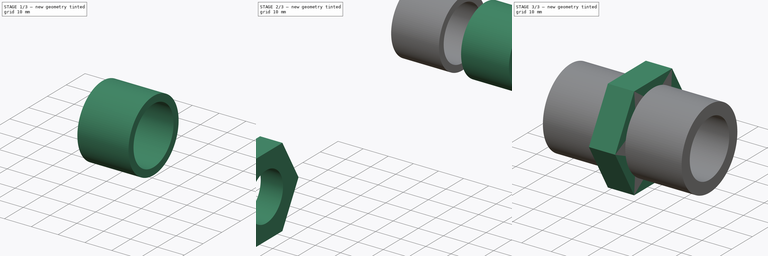
[diagram: build sequence overview — one tinted view per stage of 3, left to right]
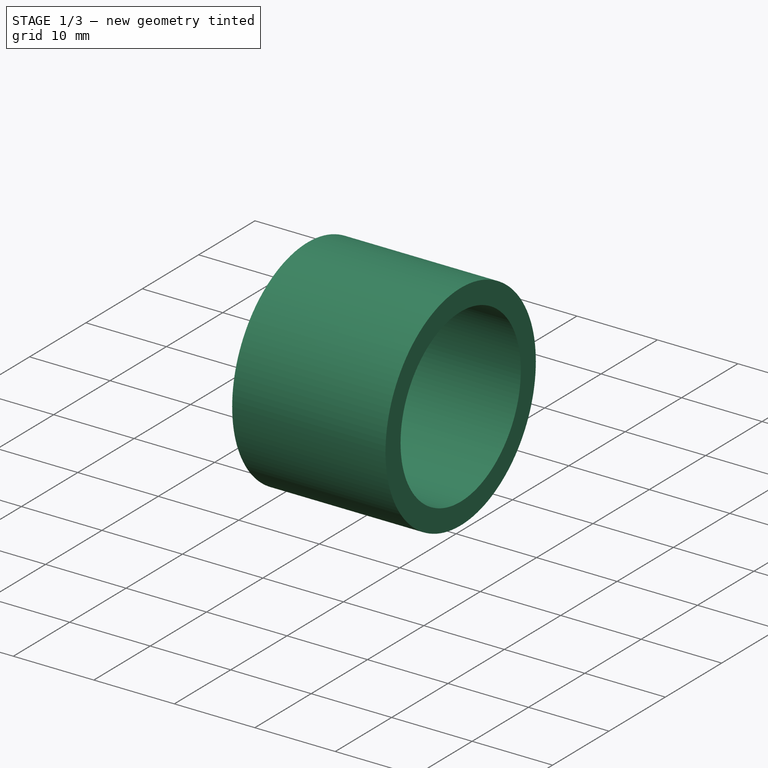
[diagram: stage 1 of 3 — iso view after this stage's code; geometry added in this stage tinted green]
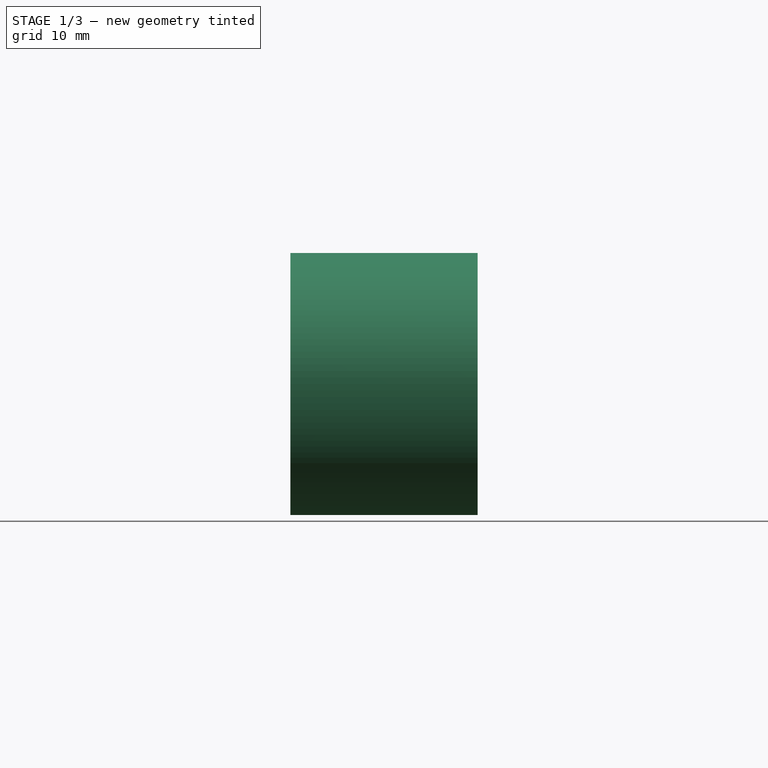
[diagram: stage 1 of 3 — front view after this stage's code; geometry added in this stage tinted green]
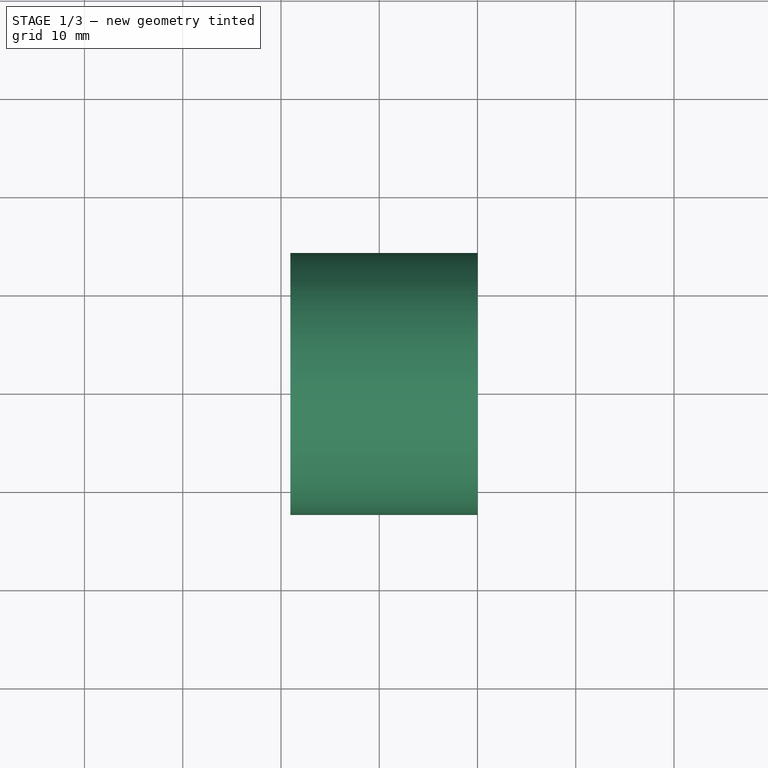
[diagram: stage 1 of 3 — top view after this stage's code; geometry added in this stage tinted green]
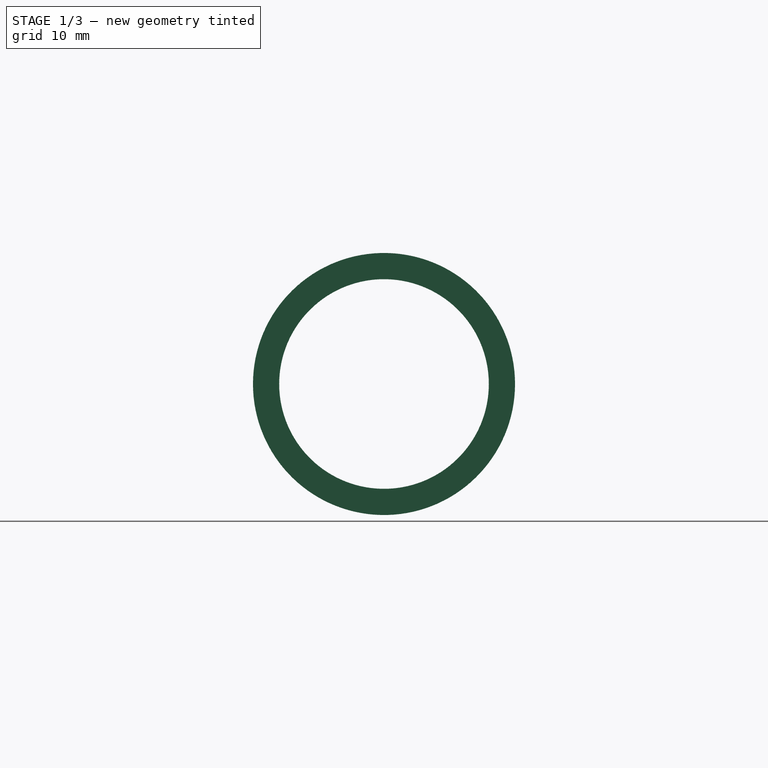
[diagram: stage 1 of 3 — right view after this stage's code; geometry added in this stage tinted green]
FCSTD DOCUMENT  (FreeCAD 0.16R6712 (Git))
Label: SAE_12 to 0.75in NPT adapter
License: All rights reserved
LicenseURL: http://en.wikipedia.org/wiki/All_rights_reserved
objects: Sketcher::SketchObject×3, PartDesign::Pad×3, Part::FeaturePython×3, App::FeaturePython×2, Part::Compound×1, Part::Feature×1
note: 14 computed .brp shape members not serialized (recipe doc carries the construction recipe); baked Part::Feature solids carry a one-line shape summary decoded from their .brp

FEATURE [Sketcher::SketchObject] Sketch  label="NPT 0.75in"
  Placement = pos=(0,0,0) rot=(0.57735,0.57735,0.57735;2.0944rad)
  sketch-geometry (2):
    g0: Circle CenterX=0 CenterY=0 CenterZ=0 NormalX=0 NormalY=0 NormalZ=1 Radius=10.668
    g1: Circle CenterX=0 CenterY=0 CenterZ=0 NormalX=0 NormalY=0 NormalZ=1 Radius=13.335
  constraints (4):
    c: Coincident(g0,g-1)
    c: Radius(g0) = 10.668
    c: Coincident(g1,g-1)
    c: Radius(g1) = 13.335
FEATURE [PartDesign::Pad] Pad  label="0.75in x0.75in NPT tube"
  Length = 19.05
  Length2 = 100
  Placement = pos=(0,0,0) rot=(0.57735,0.57735,0.57735;2.0944rad)
  Sketch = -> Sketch
  Type = 0
FEATURE [Part::FeaturePython] Clone002  label="Clone of 0.75in x0.75in NPT tube"  # Draft clone (typed FeaturePython)
  Objects = -> [Pad]
  Placement = pos=(60.96,50.8,50.8) rot=(0.57735,0.57735,0.57735;2.0944rad)
  Scale = (1,1,1)
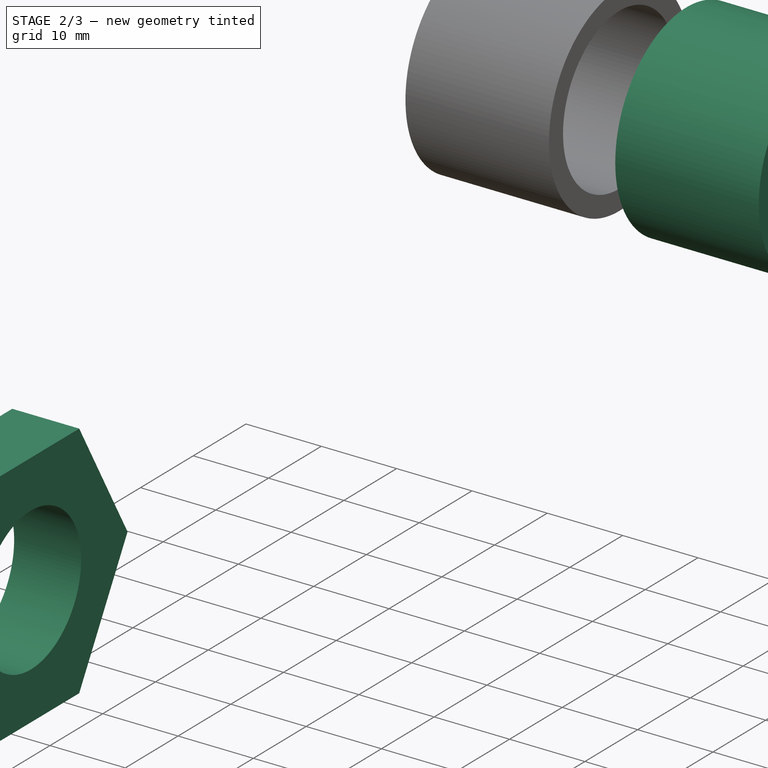
[diagram: stage 2 of 3 — iso view after this stage's code; geometry added in this stage tinted green]
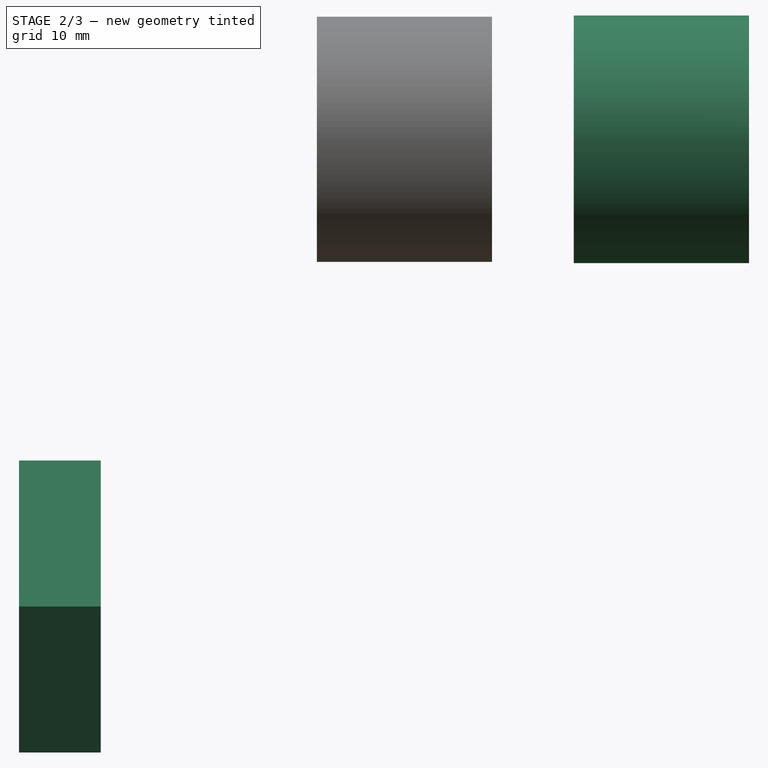
[diagram: stage 2 of 3 — front view after this stage's code; geometry added in this stage tinted green]
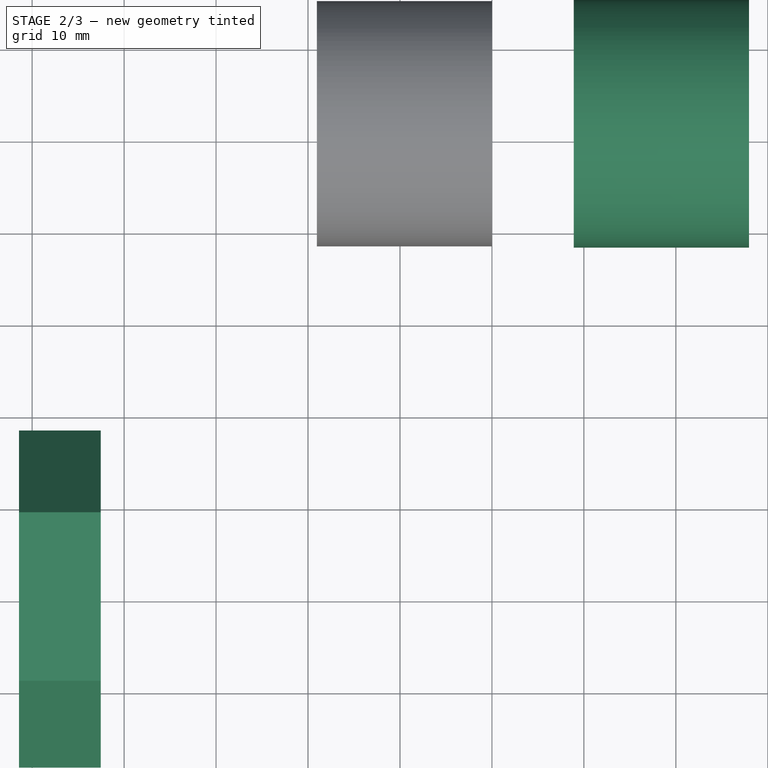
[diagram: stage 2 of 3 — top view after this stage's code; geometry added in this stage tinted green]
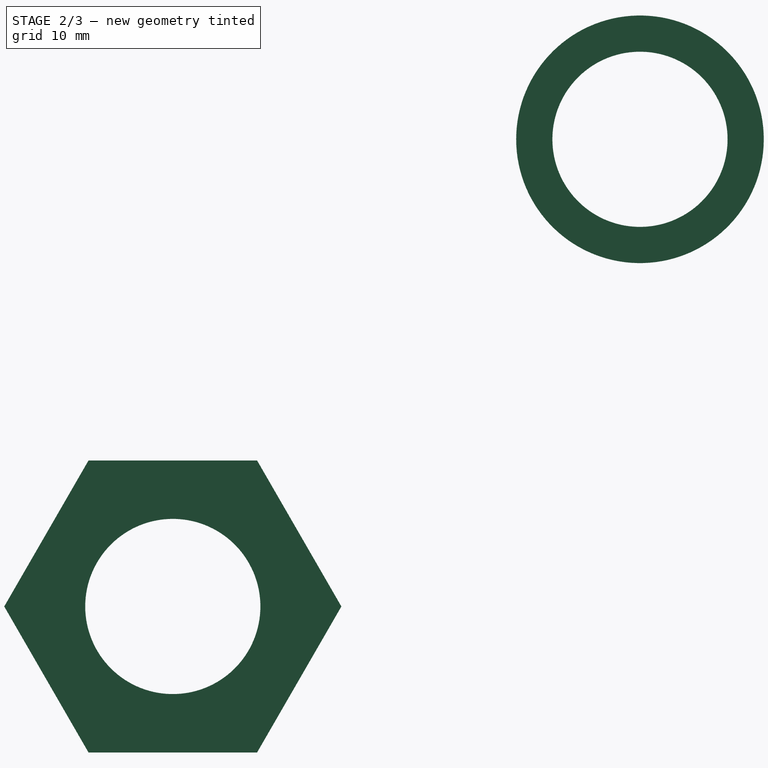
[diagram: stage 2 of 3 — right view after this stage's code; geometry added in this stage tinted green]
FEATURE [Sketcher::SketchObject] Sketch001  label="SAE -12 O-ring Boss 1-1/16in OD"
  Placement = pos=(38.1,0,0) rot=(0.57735,0.57735,0.57735;2.0944rad)
  sketch-geometry (2):
    g0: Circle CenterX=0 CenterY=0 CenterZ=0 NormalX=0 NormalY=0 NormalZ=1 Radius=13.462
    g1: Circle CenterX=0 CenterY=0 CenterZ=0 NormalX=0 NormalY=0 NormalZ=1 Radius=9.525
  constraints (4):
    c: Coincident(g0,g-1)
    c: Coincident(g1,g-1)
    c: Radius(g1) = 9.525  'inner tube'
    c: Radius(g0) = 13.462
FEATURE [PartDesign::Pad] Pad001  label="SAE -16 x 0.75in tube"
  Length = 19.05
  Length2 = 100
  Placement = pos=(38.1,0,0) rot=(0.57735,0.57735,0.57735;2.0944rad)
  Sketch = -> Sketch001
  Type = 0
FEATURE [Sketcher::SketchObject] Sketch002  label="Hex 1.25in with 0.75in bore"
  Placement = pos=(33.02,0,0) rot=(0.57735,0.57735,0.57735;2.0944rad)
  sketch-geometry (9):
    g0: LineSegment StartX=9.16544 StartY=-15.875 StartZ=0 EndX=18.3309 EndY=0 EndZ=0
    g1: LineSegment StartX=18.3309 StartY=0 StartZ=0 EndX=9.16544 EndY=15.875 EndZ=0
    g2: LineSegment StartX=9.16544 StartY=15.875 StartZ=0 EndX=-9.16544 EndY=15.875 EndZ=0
    g3: LineSegment StartX=-9.16544 StartY=15.875 StartZ=0 EndX=-18.3309 EndY=0 EndZ=0
    g4: LineSegment StartX=-18.3309 StartY=0 StartZ=0 EndX=-9.16544 EndY=-15.875 EndZ=0
    g5: LineSegment StartX=-9.16544 StartY=-15.875 StartZ=0 EndX=9.16544 EndY=-15.875 EndZ=0
    g6: Circle [constr] CenterX=0 CenterY=0 CenterZ=0 NormalX=0 NormalY=0 NormalZ=1 Radius=18.3309
    g7: LineSegment [constr] StartX=-9.16544 StartY=15.875 StartZ=0 EndX=-9.16544 EndY=-15.875 EndZ=0
    g8: Circle CenterX=0 CenterY=0 CenterZ=0 NormalX=0 NormalY=0 NormalZ=1 Radius=9.525
  constraints (20):
    c: Coincident(g0,g1)
    c: Coincident(g1,g2)
    c: Coincident(g2,g3)
    c: Coincident(g3,g4)
    c: Coincident(g4,g5)
    c: Coincident(g5,g0)
    c: Equal(g0, g1-g5) x5
    c: PointOnObject(g0,g6)
    c: PointOnObject(g1,g6)
    c: PointOnObject(g2,g6)
    c: PointOnObject(g3,g6)
    c: PointOnObject(g4,g6)
    c: PointOnObject(g5,g6)
    c: Coincident(g6,g-1)
    c: Coincident(g7,g2)
    c: Coincident(g7,g4)
    c: Vertical(g7)
    c: DistanceY(g7,g7) = 31.75
    c: Coincident(g8,g-1)
    c: Radius(g8) = 9.525
FEATURE [PartDesign::Pad] Pad002  label="Hex nut 1.5in x 0.35in"
  Length = 8.89
  Length2 = 100
  Midplane = true
  Placement = pos=(33.02,0,0) rot=(0.57735,0.57735,0.57735;2.0944rad)
  Reversed = true
  Sketch = -> Sketch002
  Type = 0
FEATURE [Part::FeaturePython] Clone001  label="Clone of SAE -12 x 0.75in tube"  # Draft clone (typed FeaturePython)
  Objects = -> [Pad001]
  Placement = pos=(88.9,50.8,50.8) rot=(0.57735,0.57735,0.57735;2.0944rad)
  Scale = (1,1,1)
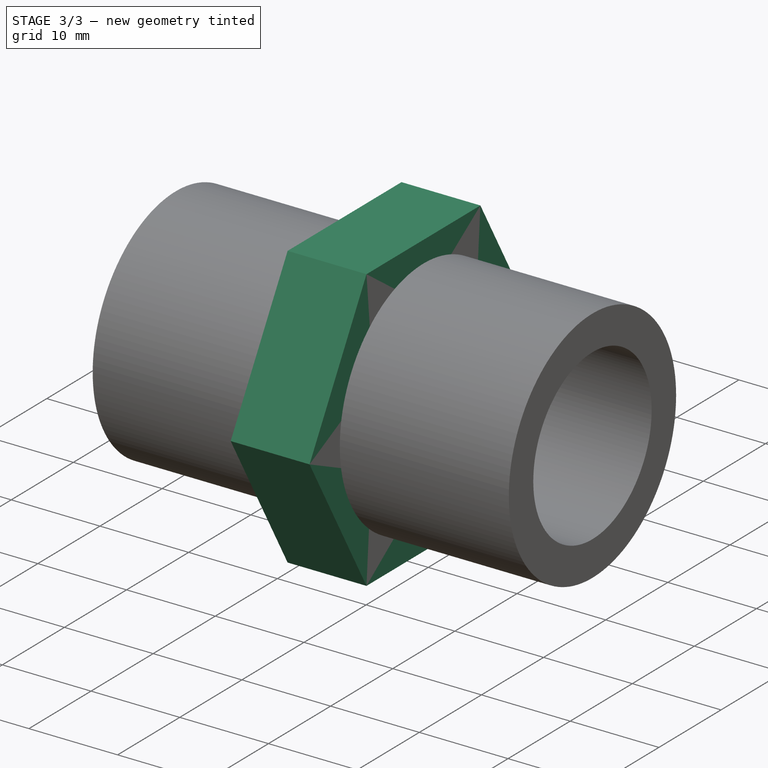
[diagram: stage 3 of 3 — iso view after this stage's code; geometry added in this stage tinted green]
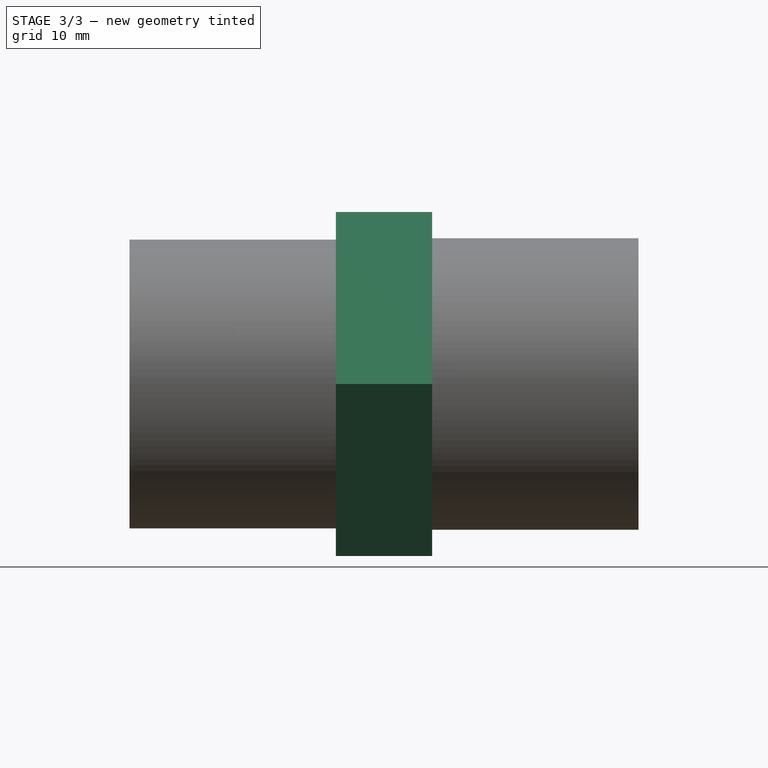
[diagram: stage 3 of 3 — front view after this stage's code; geometry added in this stage tinted green]
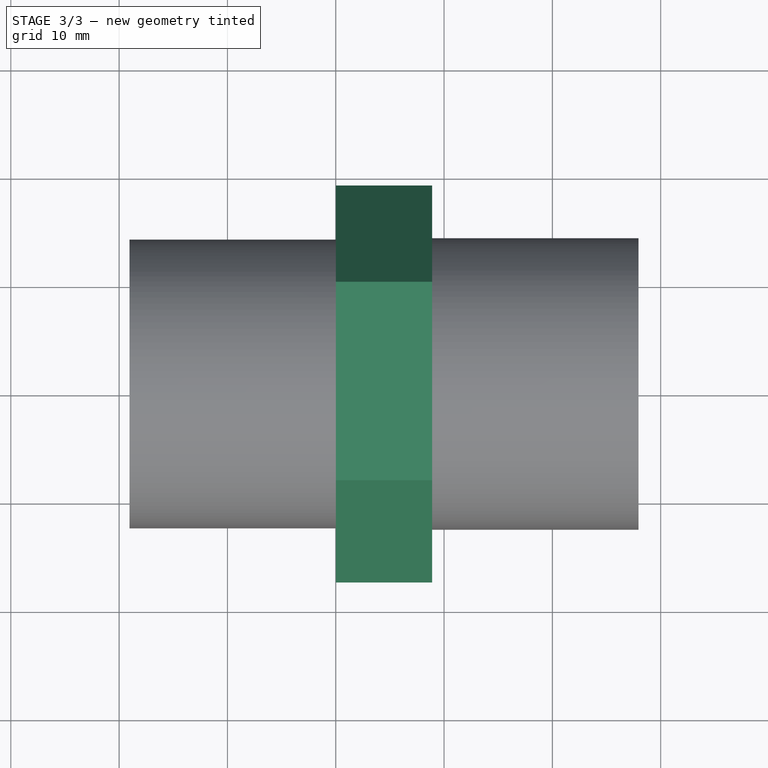
[diagram: stage 3 of 3 — top view after this stage's code; geometry added in this stage tinted green]
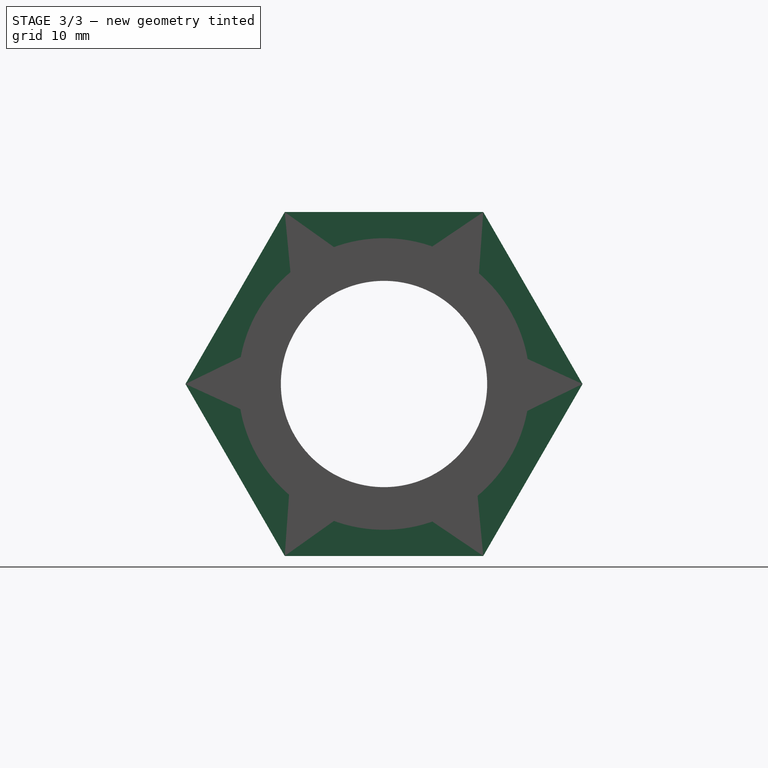
[diagram: stage 3 of 3 — right view after this stage's code; geometry added in this stage tinted green]
FEATURE [Part::FeaturePython] Clone  label="Clone of Hex nut 1.25in x 0.35in"  # Draft clone (typed FeaturePython)
  Objects = -> [Pad002]
  Placement = pos=(84.455,50.8,50.8) rot=(0.57735,0.57735,0.57735;2.0944rad)
  Scale = (1,1,1)
FEATURE [App::FeaturePython] circularEdgeConstraint01  # a2plus constraint (typed FeaturePython)
  Object1 = Clone
  Object2 = Clone001
  SubElement1 = Edge21
  SubElement2 = Edge5
  Type = circularEdge
  directionConstraint = 0
  lockRotation = false
  offset = 0
FEATURE [App::FeaturePython] circularEdgeConstraint02  # a2plus constraint (typed FeaturePython)
  Object1 = Clone
  Object2 = Clone002
  SubElement1 = Edge20
  SubElement2 = Edge6
  Type = circularEdge
  directionConstraint = 0
  lockRotation = false
  offset = 0
FEATURE [Part::Compound] Compound
  Links = -> [Clone,Clone002,Clone001]
FEATURE [Part::Feature] Compound001  label="SAE -12 to 3/4" adapter"
  shape: bbox 46.99 x 36.66 x 31.75 mm, 17 faces, 3 solids (baked)
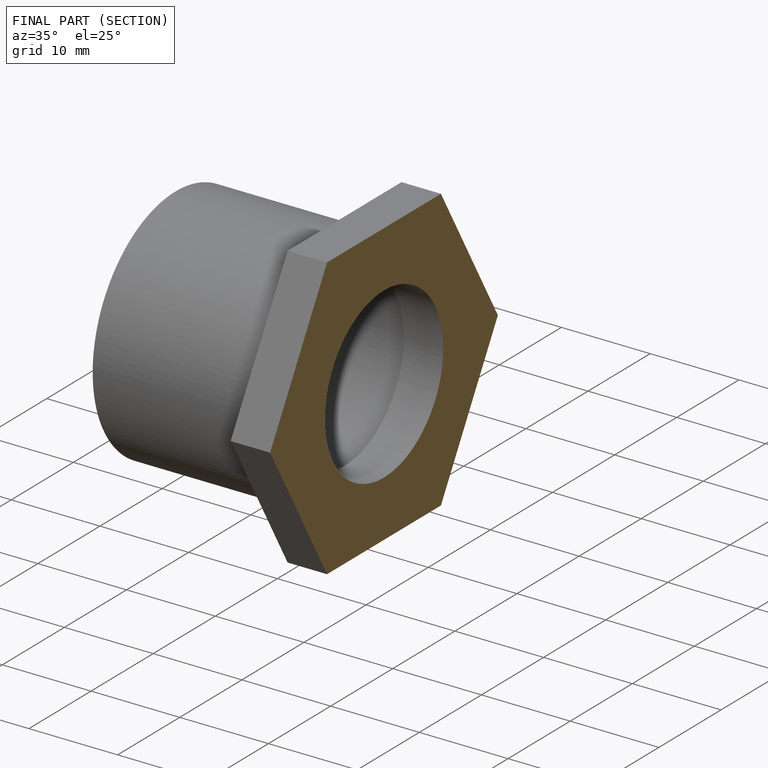
[diagram: finished part — half-section view (interior)]
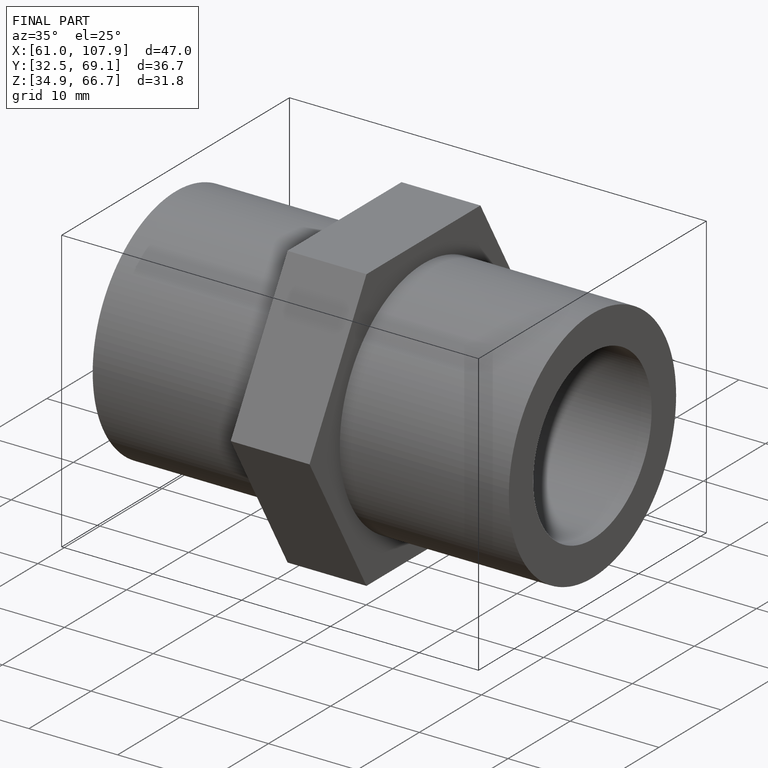
[diagram: finished part — iso view with bounding-box wireframe]
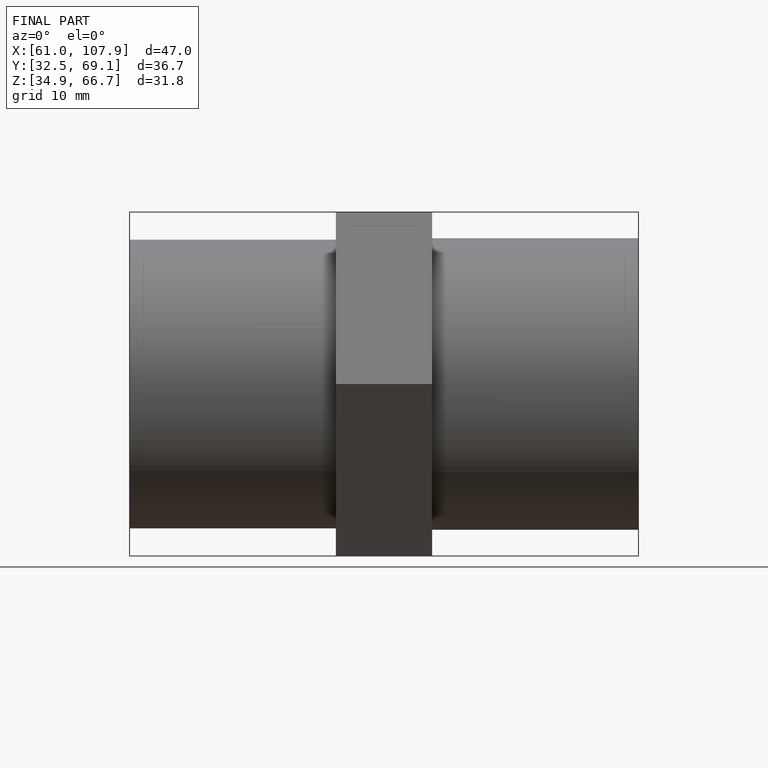
[diagram: finished part — front view with bounding-box wireframe]
